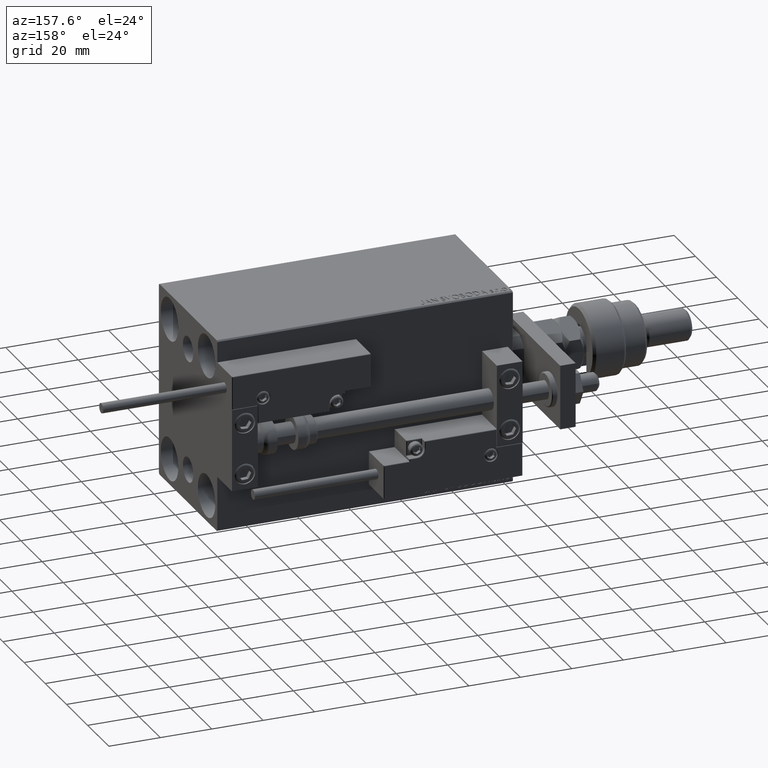
[diagram: clean part render]
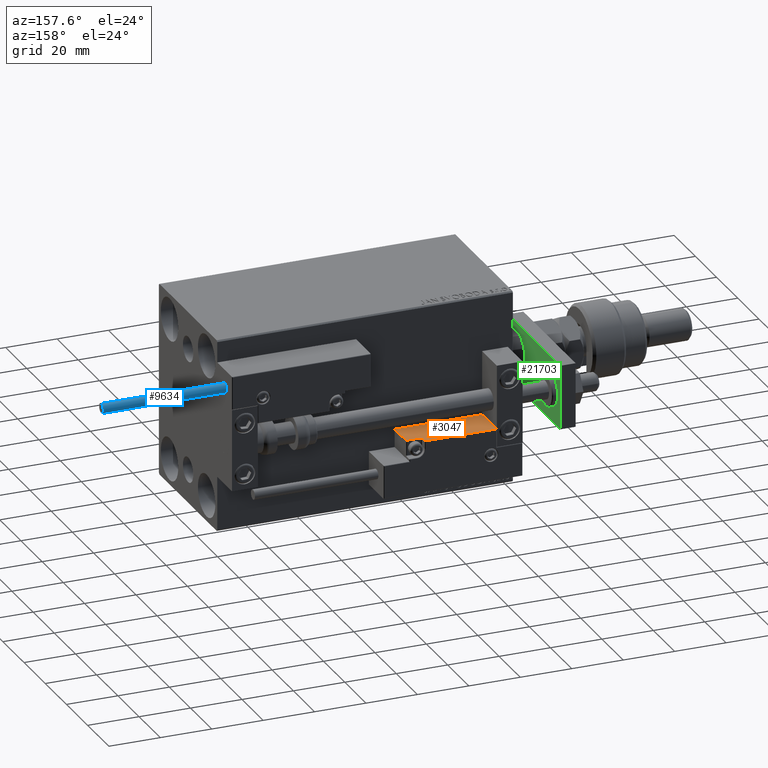
[diagram: same view with three faces highlighted in distinct colors, each labeled with its STEP entity id]
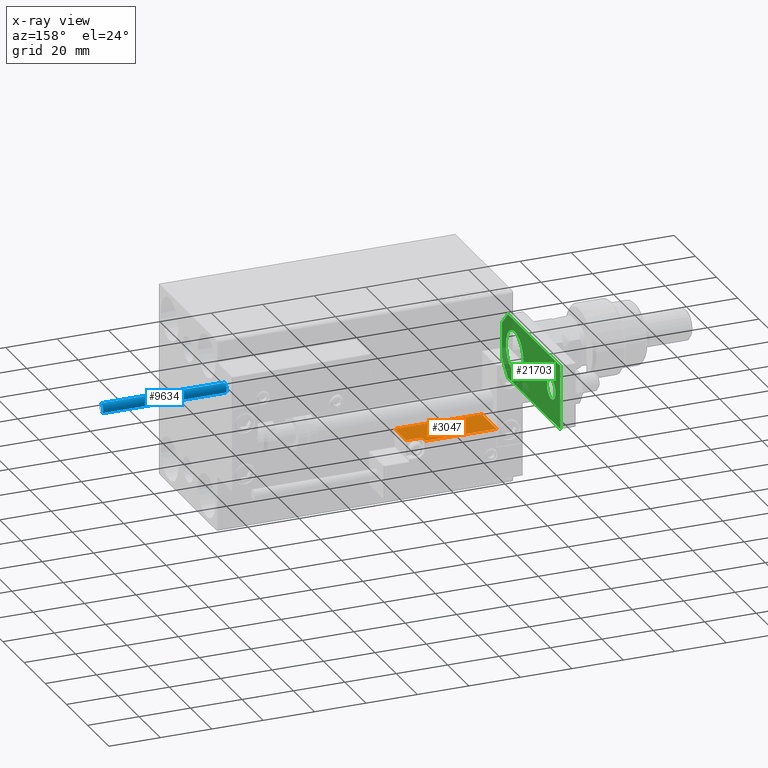
[diagram: x-ray of the same camera — body ghosted, the three highlighted faces saturated]
A machine part, auxiliary view with three faces highlighted in distinct colors.
The next image is the same camera in x-ray (body ghosted, the three faces saturated) — at least one of them is partly hidden behind the body in this view.
Their STEP definitions:

[orange] entity #3047 — the highlighted planar face has unit normal (-0, -0, -1).
#126 = VERTEX_POINT ( 'NONE', #25517 ) ;
#947 = CARTESIAN_POINT ( 'NONE',  ( -16.99999999999999289, 3.252606517456513302E-15, 0.000000000000000000 ) ) ;
#1213 = CARTESIAN_POINT ( 'NONE',  ( 10.70000000000000107, 3.252606517456513302E-15, 13.70000000000000107 ) ) ;
#1734 = VERTEX_POINT ( 'NONE', #23430 ) ;
#3047 = ADVANCED_FACE ( 'NONE', ( #17545 ), #22082, .F. ) ;
#5084 = LINE ( 'NONE', #41856, #37092 ) ;
#6485 = VECTOR ( 'NONE', #13577, 1000.000000000000000 ) ;
#6887 = DIRECTION ( 'NONE',  ( 0.000000000000000000, -0.000000000000000000, 1.000000000000000000 ) ) ;
#9866 = CIRCLE ( 'NONE', #39650, 0.5999999999999998668 ) ;
#10424 = CARTESIAN_POINT ( 'NONE',  ( 16.99999999999999289, 3.252606517456513302E-15, 14.00000000000000000 ) ) ;
#11041 = VECTOR ( 'NONE', #47790, 1000.000000000000000 ) ;
#12726 = AXIS2_PLACEMENT_3D ( 'NONE', #37777, #21013, #50613 ) ;
#12923 = ORIENTED_EDGE ( 'NONE', *, *, #27384, .T. ) ;
#12986 = CARTESIAN_POINT ( 'NONE',  ( 16.99999999999999289, 3.252606517456513302E-15, 10.69999999999999929 ) ) ;
#13273 = ORIENTED_EDGE ( 'NONE', *, *, #34951, .F. ) ;
#13577 = DIRECTION ( 'NONE',  ( -1.000000000000000000, 0.000000000000000000, -0.000000000000000000 ) ) ;
#13880 = DIRECTION ( 'NONE',  ( -1.000000000000000000, 0.000000000000000000, -0.000000000000000000 ) ) ;
#14039 = CARTESIAN_POINT ( 'NONE',  ( 11.29999999999999893, 3.252606517456513302E-15, 10.69999999999999929 ) ) ;
#17358 = ORIENTED_EDGE ( 'NONE', *, *, #20001, .T. ) ;
#17545 = FACE_OUTER_BOUND ( 'NONE', #42368, .T. ) ;
#18431 = DIRECTION ( 'NONE',  ( -0.000000000000000000, -0.000000000000000000, -1.000000000000000000 ) ) ;
#18758 = ORIENTED_EDGE ( 'NONE', *, *, #32890, .T. ) ;
#19440 = VERTEX_POINT ( 'NONE', #22840 ) ;
#20001 = EDGE_CURVE ( 'NONE', #28565, #27647, #5084, .T. ) ;
#20398 = CARTESIAN_POINT ( 'NONE',  ( -16.99999999999999289, 3.252606517456513302E-15, 14.00000000000000000 ) ) ;
#21013 = DIRECTION ( 'NONE',  ( 0.000000000000000000, 1.000000000000000000, 0.000000000000000000 ) ) ;
#21686 = LINE ( 'NONE', #47527, #11041 ) ;
#21716 = ORIENTED_EDGE ( 'NONE', *, *, #51098, .T. ) ;
#22082 = PLANE ( 'NONE',  #12726 ) ;
#22840 = CARTESIAN_POINT ( 'NONE',  ( 10.70000000000000107, 3.252606517456513302E-15, 11.29999999999999893 ) ) ;
#23430 = CARTESIAN_POINT ( 'NONE',  ( -16.99999999999999289, 3.252606517456513302E-15, 13.70000000000000107 ) ) ;
#23550 = EDGE_CURVE ( 'NONE', #19440, #27647, #9866, .T. ) ;
#24191 = LINE ( 'NONE', #43398, #37234 ) ;
#24836 = EDGE_CURVE ( 'NONE', #47014, #1734, #41818, .T. ) ;
#25517 = CARTESIAN_POINT ( 'NONE',  ( 16.99999999999999289, 3.252606517456513302E-15, 0.000000000000000000 ) ) ;
#27384 = EDGE_CURVE ( 'NONE', #19440, #47014, #24191, .T. ) ;
#27647 = VERTEX_POINT ( 'NONE', #14039 ) ;
#28139 = LINE ( 'NONE', #20398, #37078 ) ;
#28565 = VERTEX_POINT ( 'NONE', #12986 ) ;
#31205 = LINE ( 'NONE', #10424, #33211 ) ;
#32660 = DIRECTION ( 'NONE',  ( -0.000000000000000000, -0.000000000000000000, -1.000000000000000000 ) ) ;
#32890 = EDGE_CURVE ( 'NONE', #47082, #126, #21686, .T. ) ;
#33211 = VECTOR ( 'NONE', #18431, 1000.000000000000000 ) ;
#34154 = ORIENTED_EDGE ( 'NONE', *, *, #23550, .F. ) ;
#34394 = CARTESIAN_POINT ( 'NONE',  ( 11.29999999999999893, 3.252606517456513302E-15, 11.29999999999999893 ) ) ;
#34951 = EDGE_CURVE ( 'NONE', #28565, #126, #31205, .T. ) ;
#37078 = VECTOR ( 'NONE', #32660, 1000.000000000000000 ) ;
#37092 = VECTOR ( 'NONE', #13880, 1000.000000000000000 ) ;
#37234 = VECTOR ( 'NONE', #6887, 1000.000000000000000 ) ;
#37777 = CARTESIAN_POINT ( 'NONE',  ( -16.99999999999999289, 3.252606517456513302E-15, 14.00000000000000000 ) ) ;
#39650 = AXIS2_PLACEMENT_3D ( 'NONE', #34394, #43187, #51193 ) ;
#39972 = ORIENTED_EDGE ( 'NONE', *, *, #24836, .T. ) ;
#41818 = LINE ( 'NONE', #45561, #6485 ) ;
#41856 = CARTESIAN_POINT ( 'NONE',  ( 11.00000000000000000, 3.252606517456513302E-15, 10.69999999999999929 ) ) ;
#42368 = EDGE_LOOP ( 'NONE', ( #13273, #17358, #34154, #12923, #39972, #21716, #18758 ) ) ;
#43187 = DIRECTION ( 'NONE',  ( -0.000000000000000000, -1.000000000000000000, -0.000000000000000000 ) ) ;
#43398 = CARTESIAN_POINT ( 'NONE',  ( 10.70000000000000107, 3.252606517456513302E-15, 14.00000000000000000 ) ) ;
#45561 = CARTESIAN_POINT ( 'NONE',  ( -16.99999999999999289, 3.252606517456513302E-15, 13.70000000000000107 ) ) ;
#47014 = VERTEX_POINT ( 'NONE', #1213 ) ;
#47082 = VERTEX_POINT ( 'NONE', #947 ) ;
#47527 = CARTESIAN_POINT ( 'NONE',  ( -16.99999999999999289, 3.252606517456513302E-15, 0.000000000000000000 ) ) ;
#47790 = DIRECTION ( 'NONE',  ( 1.000000000000000000, 0.000000000000000000, 0.000000000000000000 ) ) ;
#50613 = DIRECTION ( 'NONE',  ( 0.000000000000000000, -0.000000000000000000, 1.000000000000000000 ) ) ;
#51098 = EDGE_CURVE ( 'NONE', #1734, #47082, #28139, .T. ) ;
#51193 = DIRECTION ( 'NONE',  ( 0.000000000000000000, 0.000000000000000000, 1.000000000000000000 ) ) ;

[blue] entity #9634 — the highlighted cylindrical surface (edge-blend (fillet) strip) has radius 1.9 mm, axis along (-1, -0, 0).
#747 = EDGE_CURVE ( 'NONE', #45714, #15265, #39299, .T. ) ;
#1071 = DIRECTION ( 'NONE',  ( 1.000000000000000000, 0.000000000000000000, 0.000000000000000000 ) ) ;
#5215 = EDGE_CURVE ( 'NONE', #15265, #6524, #37375, .T. ) ;
#5480 = VECTOR ( 'NONE', #38320, 1000.000000000000000 ) ;
#6275 = DIRECTION ( 'NONE',  ( -1.000000000000000000, 0.000000000000000000, 0.000000000000000000 ) ) ;
#6524 = VERTEX_POINT ( 'NONE', #13892 ) ;
#9592 = DIRECTION ( 'NONE',  ( 0.000000000000000000, 0.000000000000000000, 1.000000000000000000 ) ) ;
#9634 = ADVANCED_FACE ( 'NONE', ( #38522 ), #30264, .T. ) ;
#9769 = DIRECTION ( 'NONE',  ( 0.000000000000000000, 0.000000000000000000, 1.000000000000000000 ) ) ;
#11973 = EDGE_LOOP ( 'NONE', ( #22227, #31996, #41853, #25303 ) ) ;
#12803 = CARTESIAN_POINT ( 'NONE',  ( 1.899999999999999467, 2.326828918379970872E-16, 48.00000000000000000 ) ) ;
#13892 = CARTESIAN_POINT ( 'NONE',  ( -1.899999999999999467, 0.000000000000000000, 0.000000000000000000 ) ) ;
#15265 = VERTEX_POINT ( 'NONE', #24587 ) ;
#16637 = AXIS2_PLACEMENT_3D ( 'NONE', #21597, #9592, #1071 ) ;
#18276 = CARTESIAN_POINT ( 'NONE',  ( 0.000000000000000000, 0.000000000000000000, 48.00000000000000000 ) ) ;
#21597 = CARTESIAN_POINT ( 'NONE',  ( 0.000000000000000000, 0.000000000000000000, 0.000000000000000000 ) ) ;
#21778 = DIRECTION ( 'NONE',  ( 1.000000000000000000, 0.000000000000000000, 0.000000000000000000 ) ) ;
#21834 = EDGE_CURVE ( 'NONE', #37034, #6524, #27712, .T. ) ;
#22085 = LINE ( 'NONE', #30854, #5480 ) ;
#22227 = ORIENTED_EDGE ( 'NONE', *, *, #747, .F. ) ;
#23978 = AXIS2_PLACEMENT_3D ( 'NONE', #42554, #9769, #21778 ) ;
#24587 = CARTESIAN_POINT ( 'NONE',  ( -1.899999999999999467, 0.000000000000000000, 48.00000000000000000 ) ) ;
#25303 = ORIENTED_EDGE ( 'NONE', *, *, #5215, .F. ) ;
#25401 = DIRECTION ( 'NONE',  ( -0.000000000000000000, -0.000000000000000000, -1.000000000000000000 ) ) ;
#27712 = CIRCLE ( 'NONE', #16637, 1.899999999999999467 ) ;
#30264 = CYLINDRICAL_SURFACE ( 'NONE', #51210, 1.899999999999999467 ) ;
#30854 = CARTESIAN_POINT ( 'NONE',  ( 1.899999999999999467, 2.326828918379970872E-16, 48.00000000000000000 ) ) ;
#31996 = ORIENTED_EDGE ( 'NONE', *, *, #47958, .T. ) ;
#32092 = CARTESIAN_POINT ( 'NONE',  ( 1.899999999999999467, 2.326828918379970872E-16, 0.000000000000000000 ) ) ;
#32395 = VECTOR ( 'NONE', #25401, 1000.000000000000000 ) ;
#33659 = CARTESIAN_POINT ( 'NONE',  ( -1.899999999999999467, 0.000000000000000000, 48.00000000000000000 ) ) ;
#37034 = VERTEX_POINT ( 'NONE', #32092 ) ;
#37375 = LINE ( 'NONE', #33659, #32395 ) ;
#38320 = DIRECTION ( 'NONE',  ( -0.000000000000000000, -0.000000000000000000, -1.000000000000000000 ) ) ;
#38522 = FACE_OUTER_BOUND ( 'NONE', #11973, .T. ) ;
#39040 = DIRECTION ( 'NONE',  ( -0.000000000000000000, -0.000000000000000000, -1.000000000000000000 ) ) ;
#39299 = CIRCLE ( 'NONE', #23978, 1.899999999999999467 ) ;
#41853 = ORIENTED_EDGE ( 'NONE', *, *, #21834, .T. ) ;
#42554 = CARTESIAN_POINT ( 'NONE',  ( 0.000000000000000000, 0.000000000000000000, 48.00000000000000000 ) ) ;
#45714 = VERTEX_POINT ( 'NONE', #12803 ) ;
#47958 = EDGE_CURVE ( 'NONE', #45714, #37034, #22085, .T. ) ;
#51210 = AXIS2_PLACEMENT_3D ( 'NONE', #18276, #39040, #6275 ) ;

[green] entity #21703 — the highlighted planar face has unit normal (-1, 0, 0).
#274 = EDGE_CURVE ( 'NONE', #36516, #46275, #14579, .T. ) ;
#903 = ORIENTED_EDGE ( 'NONE', *, *, #274, .F. ) ;
#1301 = ORIENTED_EDGE ( 'NONE', *, *, #44935, .F. ) ;
#1407 = CARTESIAN_POINT ( 'NONE',  ( -1.432611055310774642E-16, 46.50000000000000000, 0.000000000000000000 ) ) ;
#1515 = CARTESIAN_POINT ( 'NONE',  ( -1.432611055310774642E-16, 46.50000000000000000, 0.000000000000000000 ) ) ;
#2390 = CARTESIAN_POINT ( 'NONE',  ( 6.839999999999998970, 4.814824860968089633E-32, 0.000000000000000000 ) ) ;
#3125 = LINE ( 'NONE', #15364, #22575 ) ;
#3770 = FACE_BOUND ( 'NONE', #27542, .T. ) ;
#4370 = VERTEX_POINT ( 'NONE', #18197 ) ;
#4543 = FACE_OUTER_BOUND ( 'NONE', #24197, .T. ) ;
#5064 = LINE ( 'NONE', #22121, #30894 ) ;
#5140 = LINE ( 'NONE', #13139, #40517 ) ;
#5463 = DIRECTION ( 'NONE',  ( 1.000000000000000000, 0.000000000000000000, 0.000000000000000000 ) ) ;
#5620 = VERTEX_POINT ( 'NONE', #25604 ) ;
#5791 = VERTEX_POINT ( 'NONE', #6149 ) ;
#6149 = CARTESIAN_POINT ( 'NONE',  ( -8.250000000000000000, 11.99999999999999645, 0.000000000000000000 ) ) ;
#6205 = DIRECTION ( 'NONE',  ( -6.308085367188389994E-17, 1.000000000000000000, 0.000000000000000000 ) ) ;
#6935 = EDGE_LOOP ( 'NONE', ( #41553, #45049 ) ) ;
#7860 = VERTEX_POINT ( 'NONE', #33641 ) ;
#8286 = DIRECTION ( 'NONE',  ( 1.000000000000000000, 0.000000000000000000, 0.000000000000000000 ) ) ;
#9229 = CARTESIAN_POINT ( 'NONE',  ( -6.840000000000012292, 4.814824860968089633E-32, 0.000000000000000000 ) ) ;
#9851 = DIRECTION ( 'NONE',  ( -9.462128050782584375E-17, -1.000000000000000000, 0.000000000000000000 ) ) ;
#10104 = CIRCLE ( 'NONE', #19455, 8.250000000000000000 ) ;
#10435 = ORIENTED_EDGE ( 'NONE', *, *, #22492, .T. ) ;
#10817 = CARTESIAN_POINT ( 'NONE',  ( 4.000000000000000888, 46.50000000000000000, 0.000000000000000000 ) ) ;
#10932 = VERTEX_POINT ( 'NONE', #9229 ) ;
#11287 = CIRCLE ( 'NONE', #50448, 4.000000000000000888 ) ;
#11864 = EDGE_CURVE ( 'NONE', #35403, #4370, #11287, .T. ) ;
#12283 = DIRECTION ( 'NONE',  ( -0.000000000000000000, 0.000000000000000000, 1.000000000000000000 ) ) ;
#12374 = AXIS2_PLACEMENT_3D ( 'NONE', #20459, #33498, #52746 ) ;
#13139 = CARTESIAN_POINT ( 'NONE',  ( 12.50000000000000355, 4.814824860968089633E-32, 0.000000000000000000 ) ) ;
#13705 = CARTESIAN_POINT ( 'NONE',  ( -12.50000000000000355, 5.660000000000005471, 0.000000000000000000 ) ) ;
#14579 = LINE ( 'NONE', #39611, #45283 ) ;
#15053 = DIRECTION ( 'NONE',  ( -0.7071067811865467956, 0.7071067811865483499, -0.000000000000000000 ) ) ;
#15364 = CARTESIAN_POINT ( 'NONE',  ( 12.50000000000000355, 5.659999999999991260, 0.000000000000000000 ) ) ;
#16742 = CARTESIAN_POINT ( 'NONE',  ( 12.50000000000000000, 55.00000000000000000, 0.000000000000000000 ) ) ;
#17462 = DIRECTION ( 'NONE',  ( 0.000000000000000000, 0.000000000000000000, 1.000000000000000000 ) ) ;
#18197 = CARTESIAN_POINT ( 'NONE',  ( -4.000000000000000888, 46.50000000000000000, 0.000000000000000000 ) ) ;
#18616 = ORIENTED_EDGE ( 'NONE', *, *, #45085, .F. ) ;
#18897 = DIRECTION ( 'NONE',  ( 1.000000000000000000, 0.000000000000000000, 0.000000000000000000 ) ) ;
#19455 = AXIS2_PLACEMENT_3D ( 'NONE', #26712, #17462, #5463 ) ;
#20459 = CARTESIAN_POINT ( 'NONE',  ( -9.629649721936179265E-32, 11.99999999999999645, 0.000000000000000000 ) ) ;
#20892 = CIRCLE ( 'NONE', #49825, 4.000000000000000888 ) ;
#21703 = ADVANCED_FACE ( 'NONE', ( #4543, #3770, #24800 ), #41048, .F. ) ;
#21736 = CARTESIAN_POINT ( 'NONE',  ( -12.49999999999999822, 55.00000000000000000, 0.000000000000000000 ) ) ;
#21738 = ORIENTED_EDGE ( 'NONE', *, *, #52499, .F. ) ;
#22033 = EDGE_CURVE ( 'NONE', #7860, #45137, #3125, .T. ) ;
#22121 = CARTESIAN_POINT ( 'NONE',  ( -12.49999999999999822, 55.00000000000000000, 0.000000000000000000 ) ) ;
#22383 = LINE ( 'NONE', #39143, #48796 ) ;
#22492 = EDGE_CURVE ( 'NONE', #4370, #35403, #20892, .T. ) ;
#22540 = AXIS2_PLACEMENT_3D ( 'NONE', #28540, #12283, #8286 ) ;
#22575 = VECTOR ( 'NONE', #47900, 1000.000000000000114 ) ;
#24197 = EDGE_LOOP ( 'NONE', ( #18616, #38158, #1301, #903, #21738, #36265 ) ) ;
#24800 = FACE_BOUND ( 'NONE', #6935, .T. ) ;
#25604 = CARTESIAN_POINT ( 'NONE',  ( 8.250000000000000000, 11.99999999999999822, 0.000000000000000000 ) ) ;
#26202 = DIRECTION ( 'NONE',  ( 1.000000000000000000, 0.000000000000000000, 0.000000000000000000 ) ) ;
#26712 = CARTESIAN_POINT ( 'NONE',  ( -9.629649721936179265E-32, 11.99999999999999645, 0.000000000000000000 ) ) ;
#27542 = EDGE_LOOP ( 'NONE', ( #10435, #31755 ) ) ;
#28540 = CARTESIAN_POINT ( 'NONE',  ( 0.000000000000000000, 0.000000000000000000, 0.000000000000000000 ) ) ;
#30894 = VECTOR ( 'NONE', #9851, 1000.000000000000000 ) ;
#30972 = DIRECTION ( 'NONE',  ( 0.000000000000000000, 0.000000000000000000, 1.000000000000000000 ) ) ;
#31284 = EDGE_CURVE ( 'NONE', #5620, #5791, #10104, .T. ) ;
#31755 = ORIENTED_EDGE ( 'NONE', *, *, #11864, .T. ) ;
#33241 = VECTOR ( 'NONE', #15053, 1000.000000000000000 ) ;
#33498 = DIRECTION ( 'NONE',  ( 0.000000000000000000, 0.000000000000000000, 1.000000000000000000 ) ) ;
#33641 = CARTESIAN_POINT ( 'NONE',  ( 12.50000000000000355, 5.659999999999991260, 0.000000000000000000 ) ) ;
#35331 = CIRCLE ( 'NONE', #12374, 8.250000000000000000 ) ;
#35346 = DIRECTION ( 'NONE',  ( -1.000000000000000000, 0.000000000000000000, 0.000000000000000000 ) ) ;
#35403 = VERTEX_POINT ( 'NONE', #10817 ) ;
#36265 = ORIENTED_EDGE ( 'NONE', *, *, #22033, .T. ) ;
#36516 = VERTEX_POINT ( 'NONE', #16742 ) ;
#38158 = ORIENTED_EDGE ( 'NONE', *, *, #39711, .T. ) ;
#39143 = CARTESIAN_POINT ( 'NONE',  ( -12.50000000000000355, 4.814824860968089633E-32, 0.000000000000000000 ) ) ;
#39611 = CARTESIAN_POINT ( 'NONE',  ( 12.50000000000000000, 55.00000000000000000, 0.000000000000000000 ) ) ;
#39711 = EDGE_CURVE ( 'NONE', #10932, #42072, #47310, .T. ) ;
#40517 = VECTOR ( 'NONE', #6205, 1000.000000000000000 ) ;
#41048 = PLANE ( 'NONE',  #22540 ) ;
#41553 = ORIENTED_EDGE ( 'NONE', *, *, #50816, .T. ) ;
#41745 = DIRECTION ( 'NONE',  ( 1.000000000000000000, 0.000000000000000000, 0.000000000000000000 ) ) ;
#42072 = VERTEX_POINT ( 'NONE', #13705 ) ;
#42780 = CARTESIAN_POINT ( 'NONE',  ( -6.840000000000012292, 4.814824860968089633E-32, 0.000000000000000000 ) ) ;
#44935 = EDGE_CURVE ( 'NONE', #46275, #42072, #5064, .T. ) ;
#45049 = ORIENTED_EDGE ( 'NONE', *, *, #31284, .T. ) ;
#45085 = EDGE_CURVE ( 'NONE', #10932, #45137, #22383, .T. ) ;
#45137 = VERTEX_POINT ( 'NONE', #2390 ) ;
#45283 = VECTOR ( 'NONE', #35346, 1000.000000000000000 ) ;
#45494 = DIRECTION ( 'NONE',  ( 0.000000000000000000, 0.000000000000000000, 1.000000000000000000 ) ) ;
#46275 = VERTEX_POINT ( 'NONE', #21736 ) ;
#47310 = LINE ( 'NONE', #42780, #33241 ) ;
#47900 = DIRECTION ( 'NONE',  ( -0.7071067811865483499, -0.7071067811865465735, -0.000000000000000000 ) ) ;
#48796 = VECTOR ( 'NONE', #18897, 1000.000000000000000 ) ;
#49825 = AXIS2_PLACEMENT_3D ( 'NONE', #1407, #30972, #26202 ) ;
#50448 = AXIS2_PLACEMENT_3D ( 'NONE', #1515, #45494, #41745 ) ;
#50816 = EDGE_CURVE ( 'NONE', #5791, #5620, #35331, .T. ) ;
#52499 = EDGE_CURVE ( 'NONE', #7860, #36516, #5140, .T. ) ;
#52746 = DIRECTION ( 'NONE',  ( 1.000000000000000000, 0.000000000000000000, 0.000000000000000000 ) ) ;